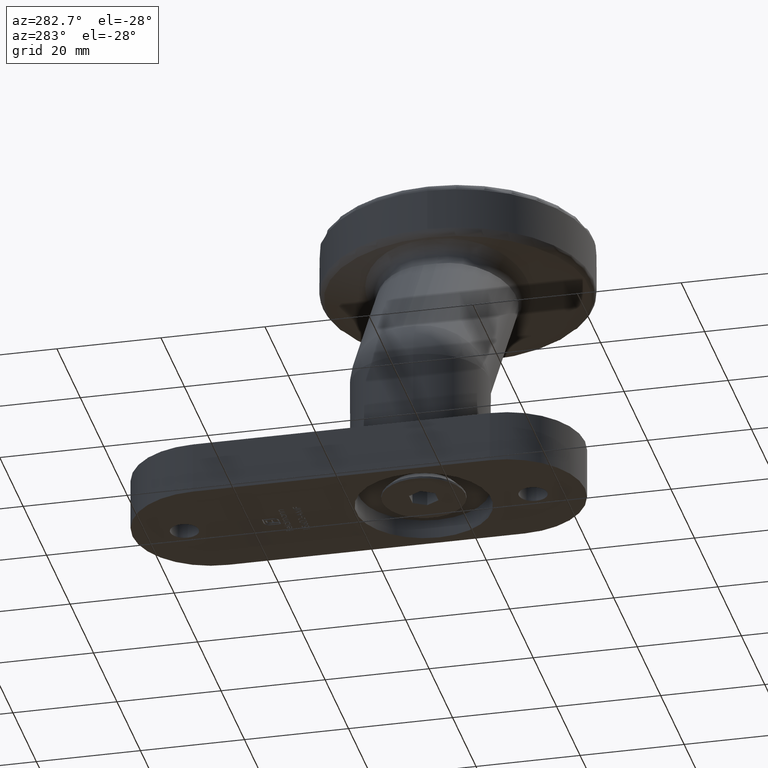
[diagram: clean part render]
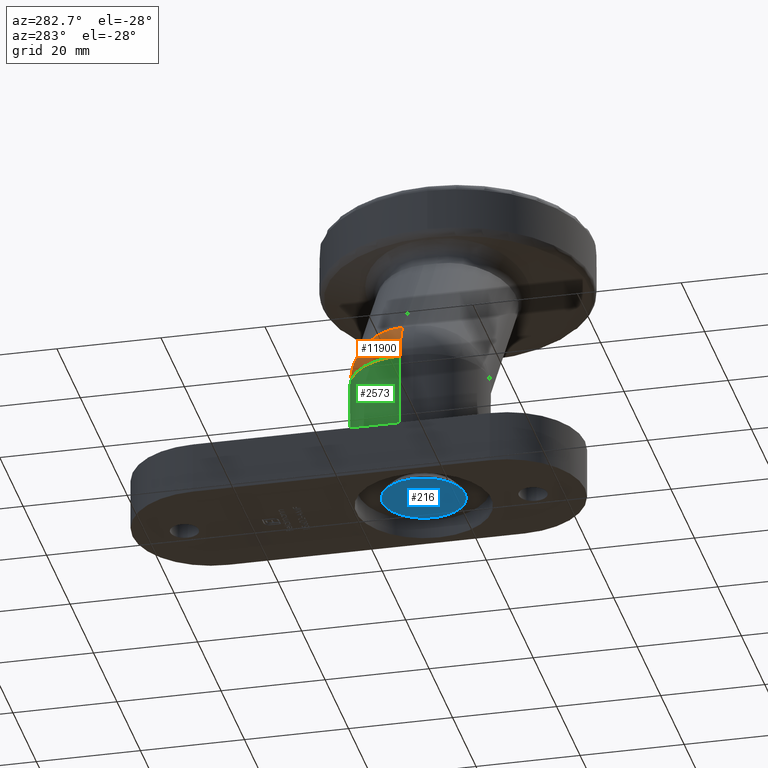
[diagram: same view with three faces highlighted in distinct colors, each labeled with its STEP entity id]
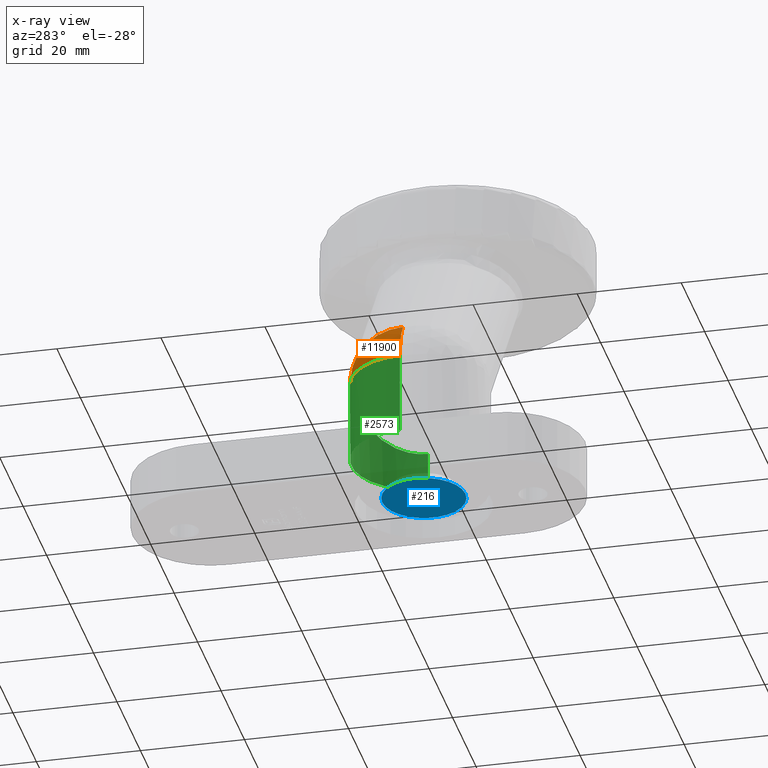
[diagram: x-ray of the same camera — body ghosted, the three highlighted faces saturated]
A machine part, auxiliary view with three faces highlighted in distinct colors.
The next image is the same camera in x-ray (body ghosted, the three faces saturated) — at least one of them is partly hidden behind the body in this view.
Their STEP definitions:

[orange] entity #11900 — the highlighted spherical surface has radius 12 mm.
#1 = DIRECTION ( 'NONE',  ( -9.602918359142752301E-17, -0.000000000000000000, -1.000000000000000000 ) ) ;
#576 = ORIENTED_EDGE ( 'NONE', *, *, #14184, .F. ) ;
#1559 = ORIENTED_EDGE ( 'NONE', *, *, #5089, .F. ) ;
#2304 = CARTESIAN_POINT ( 'NONE',  ( -9.388039360695939806, 1.249999999999997558, 23.28074691021107157 ) ) ;
#2481 = FACE_OUTER_BOUND ( 'NONE', #8900, .T. ) ;
#2578 = VERTEX_POINT ( 'NONE', #12961 ) ;
#2808 = DIRECTION ( 'NONE',  ( 1.084202172485504434E-16, -1.000000000000000000, -3.788856001517946324E-17 ) ) ;
#4025 = CIRCLE ( 'NONE', #13132, 12.00000000000000000 ) ;
#4054 = DIRECTION ( 'NONE',  ( 1.000000000000000000, 0.000000000000000000, 0.000000000000000000 ) ) ;
#4308 = CIRCLE ( 'NONE', #7516, 12.00000000000000533 ) ;
#4603 = VERTEX_POINT ( 'NONE', #2304 ) ;
#4653 = EDGE_CURVE ( 'NONE', #2578, #10839, #8803, .T. ) ;
#5089 = EDGE_CURVE ( 'NONE', #4603, #2578, #4025, .T. ) ;
#6615 = DIRECTION ( 'NONE',  ( 0.000000000000000000, 1.000000000000000000, 0.000000000000000000 ) ) ;
#7516 = AXIS2_PLACEMENT_3D ( 'NONE', #8671, #11171, #12479 ) ;
#8424 = DIRECTION ( 'NONE',  ( 1.000000000000000000, 0.000000000000000000, 0.000000000000000000 ) ) ;
#8512 = AXIS2_PLACEMENT_3D ( 'NONE', #11087, #1, #8424 ) ;
#8671 = CARTESIAN_POINT ( 'NONE',  ( -8.673617379884035472E-16, 1.249999999999999334, 15.80647658047159432 ) ) ;
#8803 = CIRCLE ( 'NONE', #8512, 12.00000000000000533 ) ;
#8809 = CARTESIAN_POINT ( 'NONE',  ( -1.207243153741664594E-15, 1.249999999999999334, 15.80647658047159432 ) ) ;
#8900 = EDGE_LOOP ( 'NONE', ( #576, #11059, #1559 ) ) ;
#9920 = SPHERICAL_SURFACE ( 'NONE', #14595, 12.00000000000000000 ) ;
#10011 = CARTESIAN_POINT ( 'NONE',  ( -1.734723475976807094E-15, 1.249999999999999334, 15.80647658047159787 ) ) ;
#10839 = VERTEX_POINT ( 'NONE', #14273 ) ;
#11059 = ORIENTED_EDGE ( 'NONE', *, *, #4653, .F. ) ;
#11087 = CARTESIAN_POINT ( 'NONE',  ( -6.797628315065216991E-16, 1.249999999999999334, 15.80647658047159432 ) ) ;
#11171 = DIRECTION ( 'NONE',  ( 0.6228558608116229189, 0.000000000000000000, 0.7823366133913280951 ) ) ;
#11900 = ADVANCED_FACE ( 'NONE', ( #2481 ), #9920, .T. ) ;
#12424 = DIRECTION ( 'NONE',  ( 1.000000000000000000, 1.084202172485504434E-16, 0.000000000000000000 ) ) ;
#12479 = DIRECTION ( 'NONE',  ( 0.7823366133913279841, 0.000000000000000000, -0.6228558608116230300 ) ) ;
#12961 = CARTESIAN_POINT ( 'NONE',  ( -12.00000000000000355, 1.249999999999997558, 15.80647658047159432 ) ) ;
#13132 = AXIS2_PLACEMENT_3D ( 'NONE', #10011, #2808, #12424 ) ;
#14184 = EDGE_CURVE ( 'NONE', #10839, #4603, #4308, .T. ) ;
#14273 = CARTESIAN_POINT ( 'NONE',  ( 1.524601406958714912E-15, 13.25000000000000533, 15.80647658047159432 ) ) ;
#14595 = AXIS2_PLACEMENT_3D ( 'NONE', #8809, #6615, #4054 ) ;

[blue] entity #216 — the highlighted planar face has unit normal (-0, 0, -1).
#35 = AXIS2_PLACEMENT_3D ( 'NONE', #481, #14848, #1456 ) ;
#111 = VERTEX_POINT ( 'NONE', #7857 ) ;
#216 = ADVANCED_FACE ( 'NONE', ( #10249, #8902 ), #15541, .T. ) ;
#399 = LINE ( 'NONE', #8067, #6459 ) ;
#406 = LINE ( 'NONE', #14939, #10096 ) ;
#481 = CARTESIAN_POINT ( 'NONE',  ( -2.407412430484044816E-32, 10.00000000000000000, 0.000000000000000000 ) ) ;
#842 = VECTOR ( 'NONE', #8053, 1000.000000000000114 ) ;
#846 = CARTESIAN_POINT ( 'NONE',  ( -2.886751345948142422, 10.00000000000000000, 0.000000000000000000 ) ) ;
#951 = DIRECTION ( 'NONE',  ( -0.5000000000000004441, 0.000000000000000000, -0.8660254037844383745 ) ) ;
#1271 = DIRECTION ( 'NONE',  ( 1.000000000000000000, 0.000000000000000000, -5.531028184587520343E-50 ) ) ;
#1456 = DIRECTION ( 'NONE',  ( 0.000000000000000000, 0.000000000000000000, -1.000000000000000000 ) ) ;
#1711 = EDGE_LOOP ( 'NONE', ( #15060, #4597, #11786, #6622, #7296, #8504 ) ) ;
#1929 = EDGE_CURVE ( 'NONE', #12837, #9980, #406, .T. ) ;
#1989 = CARTESIAN_POINT ( 'NONE',  ( -2.407412430484044816E-32, 10.00000000000000000, -8.000000000000000000 ) ) ;
#2092 = CARTESIAN_POINT ( 'NONE',  ( -2.407412430484044816E-32, 10.00000000000000000, 0.000000000000000000 ) ) ;
#2661 = LINE ( 'NONE', #15042, #4750 ) ;
#2769 = DIRECTION ( 'NONE',  ( -1.000000000000000000, 0.000000000000000000, 5.531028184587579216E-50 ) ) ;
#3043 = LINE ( 'NONE', #8463, #12404 ) ;
#3504 = LINE ( 'NONE', #9937, #8466 ) ;
#3521 = CARTESIAN_POINT ( 'NONE',  ( 1.443375672974061219, 10.00000000000000000, 2.499999999999998668 ) ) ;
#3749 = EDGE_LOOP ( 'NONE', ( #11736 ) ) ;
#3837 = DIRECTION ( 'NONE',  ( 0.4999999999999998890, 0.000000000000000000, -0.8660254037844387076 ) ) ;
#4471 = EDGE_CURVE ( 'NONE', #7607, #12837, #9962, .T. ) ;
#4597 = ORIENTED_EDGE ( 'NONE', *, *, #10522, .F. ) ;
#4750 = VECTOR ( 'NONE', #2769, 1000.000000000000000 ) ;
#5169 = CARTESIAN_POINT ( 'NONE',  ( -2.886751345948142422, 10.00000000000000000, 0.000000000000000000 ) ) ;
#6459 = VECTOR ( 'NONE', #951, 1000.000000000000114 ) ;
#6622 = ORIENTED_EDGE ( 'NONE', *, *, #11637, .F. ) ;
#7296 = ORIENTED_EDGE ( 'NONE', *, *, #14781, .F. ) ;
#7607 = VERTEX_POINT ( 'NONE', #5169 ) ;
#7857 = CARTESIAN_POINT ( 'NONE',  ( 1.443375672974061219, 10.00000000000000000, -2.500000000000000444 ) ) ;
#8053 = DIRECTION ( 'NONE',  ( 0.5000000000000002220, 0.000000000000000000, 0.8660254037844384856 ) ) ;
#8067 = CARTESIAN_POINT ( 'NONE',  ( 2.886751345948114889, 10.00000000000000000, -1.734723475976807094E-15 ) ) ;
#8253 = VERTEX_POINT ( 'NONE', #1989 ) ;
#8451 = CIRCLE ( 'NONE', #35, 8.000000000000000000 ) ;
#8463 = CARTESIAN_POINT ( 'NONE',  ( -1.443375672974066548, 10.00000000000000000, -2.500000000000000444 ) ) ;
#8466 = VECTOR ( 'NONE', #3837, 1000.000000000000000 ) ;
#8496 = EDGE_CURVE ( 'NONE', #8253, #8253, #8451, .T. ) ;
#8504 = ORIENTED_EDGE ( 'NONE', *, *, #1929, .F. ) ;
#8902 = FACE_OUTER_BOUND ( 'NONE', #3749, .T. ) ;
#9307 = VERTEX_POINT ( 'NONE', #13336 ) ;
#9937 = CARTESIAN_POINT ( 'NONE',  ( 1.443375672974061219, 10.00000000000000000, 2.499999999999998668 ) ) ;
#9962 = LINE ( 'NONE', #846, #842 ) ;
#9980 = VERTEX_POINT ( 'NONE', #3521 ) ;
#10096 = VECTOR ( 'NONE', #1271, 1000.000000000000000 ) ;
#10249 = FACE_BOUND ( 'NONE', #1711, .T. ) ;
#10522 = EDGE_CURVE ( 'NONE', #14523, #7607, #3043, .T. ) ;
#10585 = EDGE_CURVE ( 'NONE', #111, #14523, #2661, .T. ) ;
#11080 = DIRECTION ( 'NONE',  ( -0.5000000000000001110, 0.000000000000000000, 0.8660254037844385966 ) ) ;
#11637 = EDGE_CURVE ( 'NONE', #9307, #111, #399, .T. ) ;
#11736 = ORIENTED_EDGE ( 'NONE', *, *, #8496, .F. ) ;
#11786 = ORIENTED_EDGE ( 'NONE', *, *, #10585, .F. ) ;
#11943 = DIRECTION ( 'NONE',  ( -5.531028184587579216E-50, 0.000000000000000000, 1.000000000000000000 ) ) ;
#12404 = VECTOR ( 'NONE', #11080, 1000.000000000000000 ) ;
#12837 = VERTEX_POINT ( 'NONE', #14323 ) ;
#13336 = CARTESIAN_POINT ( 'NONE',  ( 2.886751345948114889, 10.00000000000000000, -1.734723475976807094E-15 ) ) ;
#14323 = CARTESIAN_POINT ( 'NONE',  ( -1.443375672974066104, 10.00000000000000000, 2.499999999999998668 ) ) ;
#14346 = DIRECTION ( 'NONE',  ( 0.000000000000000000, 1.000000000000000000, 0.000000000000000000 ) ) ;
#14523 = VERTEX_POINT ( 'NONE', #15550 ) ;
#14781 = EDGE_CURVE ( 'NONE', #9980, #9307, #3504, .T. ) ;
#14848 = DIRECTION ( 'NONE',  ( 0.000000000000000000, -1.000000000000000000, 0.000000000000000000 ) ) ;
#14939 = CARTESIAN_POINT ( 'NONE',  ( -1.443375672974066104, 10.00000000000000000, 2.499999999999998668 ) ) ;
#15042 = CARTESIAN_POINT ( 'NONE',  ( 1.443375672974061219, 10.00000000000000000, -2.500000000000000444 ) ) ;
#15060 = ORIENTED_EDGE ( 'NONE', *, *, #4471, .F. ) ;
#15254 = AXIS2_PLACEMENT_3D ( 'NONE', #2092, #14346, #11943 ) ;
#15541 = PLANE ( 'NONE',  #15254 ) ;
#15550 = CARTESIAN_POINT ( 'NONE',  ( -1.443375672974066548, 10.00000000000000000, -2.500000000000000444 ) ) ;

[green] entity #2573 — the highlighted cylindrical surface (partial cylindrical patch) has radius 12 mm, axis along (0, 0, 1).
#1 = DIRECTION ( 'NONE',  ( -9.602918359142752301E-17, -0.000000000000000000, -1.000000000000000000 ) ) ;
#39 = CARTESIAN_POINT ( 'NONE',  ( 7.029437251522860031, 13.25000000000000000, 10.89345829041051417 ) ) ;
#90 = CARTESIAN_POINT ( 'NONE',  ( 12.00000000000000533, 1.249999999999996003, 7.419429741414786506 ) ) ;
#299 = VECTOR ( 'NONE', #12251, 1000.000000000000000 ) ;
#347 = CARTESIAN_POINT ( 'NONE',  ( -12.00000000000000533, 1.249999999999997558, 0.000000000000000000 ) ) ;
#864 = LINE ( 'NONE', #14969, #11704 ) ;
#921 = VERTEX_POINT ( 'NONE', #14037 ) ;
#1036 = DIRECTION ( 'NONE',  ( 1.000000000000000000, 0.000000000000000000, 0.000000000000000000 ) ) ;
#1876 = CIRCLE ( 'NONE', #14915, 12.00000000000000533 ) ;
#2067 = FACE_OUTER_BOUND ( 'NONE', #12043, .T. ) ;
#2573 = ADVANCED_FACE ( 'NONE', ( #2067 ), #8928, .T. ) ;
#2578 = VERTEX_POINT ( 'NONE', #12961 ) ;
#2669 = EDGE_CURVE ( 'NONE', #10839, #11913, #13880, .T. ) ;
#2920 = CARTESIAN_POINT ( 'NONE',  ( 12.00000000000000533, 1.249999999999996003, 0.000000000000000000 ) ) ;
#3093 = ORIENTED_EDGE ( 'NONE', *, *, #3959, .T. ) ;
#3839 = ORIENTED_EDGE ( 'NONE', *, *, #2669, .T. ) ;
#3959 = EDGE_CURVE ( 'NONE', #921, #2578, #10353, .T. ) ;
#4653 = EDGE_CURVE ( 'NONE', #2578, #10839, #8803, .T. ) ;
#5188 = ORIENTED_EDGE ( 'NONE', *, *, #12139, .T. ) ;
#8137 = DIRECTION ( 'NONE',  ( 9.602918359142752301E-17, 0.000000000000000000, 1.000000000000000000 ) ) ;
#8424 = DIRECTION ( 'NONE',  ( 1.000000000000000000, 0.000000000000000000, 0.000000000000000000 ) ) ;
#8458 = CARTESIAN_POINT ( 'NONE',  ( 12.00000000000000178, 8.279437251522860919, 7.419429741414790058 ) ) ;
#8512 = AXIS2_PLACEMENT_3D ( 'NONE', #11087, #1, #8424 ) ;
#8803 = CIRCLE ( 'NONE', #8512, 12.00000000000000533 ) ;
#8928 = CYLINDRICAL_SURFACE ( 'NONE', #10339, 12.00000000000000533 ) ;
#9436 = DIRECTION ( 'NONE',  ( 0.000000000000000000, 0.000000000000000000, 1.000000000000000000 ) ) ;
#9522 = CARTESIAN_POINT ( 'NONE',  ( -2.197645872986227907E-15, 1.249999999999999334, 0.000000000000000000 ) ) ;
#10339 = AXIS2_PLACEMENT_3D ( 'NONE', #9522, #8137, #13012 ) ;
#10353 = LINE ( 'NONE', #347, #299 ) ;
#10839 = VERTEX_POINT ( 'NONE', #14273 ) ;
#10867 = VERTEX_POINT ( 'NONE', #2920 ) ;
#11087 = CARTESIAN_POINT ( 'NONE',  ( -6.797628315065216991E-16, 1.249999999999999334, 15.80647658047159432 ) ) ;
#11367 = CARTESIAN_POINT ( 'NONE',  ( 12.00000000000000533, 1.249999999999996003, 7.419429741414786506 ) ) ;
#11704 = VECTOR ( 'NONE', #14913, 1000.000000000000000 ) ;
#11913 = VERTEX_POINT ( 'NONE', #11367 ) ;
#12043 = EDGE_LOOP ( 'NONE', ( #3093, #12802, #3839, #14689, #5188 ) ) ;
#12139 = EDGE_CURVE ( 'NONE', #10867, #921, #1876, .T. ) ;
#12198 = CARTESIAN_POINT ( 'NONE',  ( 1.524601406958714912E-15, 13.25000000000000533, 15.80647658047159432 ) ) ;
#12251 = DIRECTION ( 'NONE',  ( 9.602918359142752301E-17, 0.000000000000000000, 1.000000000000000000 ) ) ;
#12802 = ORIENTED_EDGE ( 'NONE', *, *, #4653, .T. ) ;
#12961 = CARTESIAN_POINT ( 'NONE',  ( -12.00000000000000355, 1.249999999999997558, 15.80647658047159432 ) ) ;
#13012 = DIRECTION ( 'NONE',  ( 1.000000000000000000, 0.000000000000000000, -9.602918359142753534E-17 ) ) ;
#13880 =( BOUNDED_CURVE ( )  B_SPLINE_CURVE ( 3, ( #12198, #39, #8458, #90 ),
 .UNSPECIFIED., .F., .F. ) 
 B_SPLINE_CURVE_WITH_KNOTS ( ( 4, 4 ),
 ( 1.570796326794896780, 3.141592653589793116 ),
 .UNSPECIFIED. ) 
 CURVE ( )  GEOMETRIC_REPRESENTATION_ITEM ( )  RATIONAL_B_SPLINE_CURVE ( ( 1.000000000000000000, 0.8047378541243650485, 0.8047378541243650485, 1.000000000000000000 ) ) 
 REPRESENTATION_ITEM ( '' )  );
#14037 = CARTESIAN_POINT ( 'NONE',  ( -12.00000000000000533, 1.249999999999997558, 0.000000000000000000 ) ) ;
#14273 = CARTESIAN_POINT ( 'NONE',  ( 1.524601406958714912E-15, 13.25000000000000533, 15.80647658047159432 ) ) ;
#14339 = CARTESIAN_POINT ( 'NONE',  ( -2.197645872986227907E-15, 1.249999999999999334, 0.000000000000000000 ) ) ;
#14689 = ORIENTED_EDGE ( 'NONE', *, *, #15728, .F. ) ;
#14913 = DIRECTION ( 'NONE',  ( 9.602918359142752301E-17, 0.000000000000000000, 1.000000000000000000 ) ) ;
#14915 = AXIS2_PLACEMENT_3D ( 'NONE', #14339, #9436, #1036 ) ;
#14969 = CARTESIAN_POINT ( 'NONE',  ( 12.00000000000000533, 1.249999999999996003, 0.000000000000000000 ) ) ;
#15728 = EDGE_CURVE ( 'NONE', #10867, #11913, #864, .T. ) ;